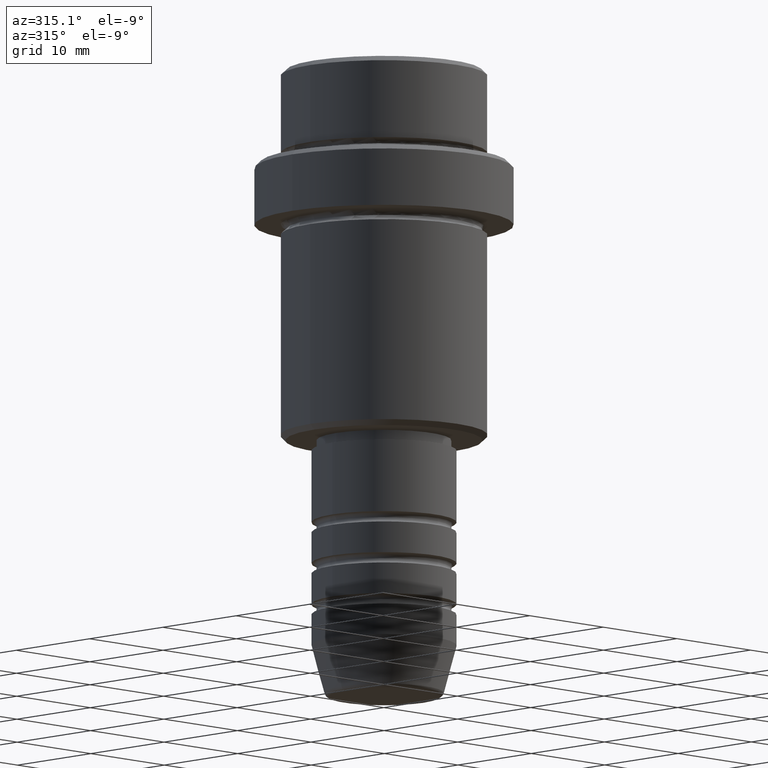
[diagram: clean part render]
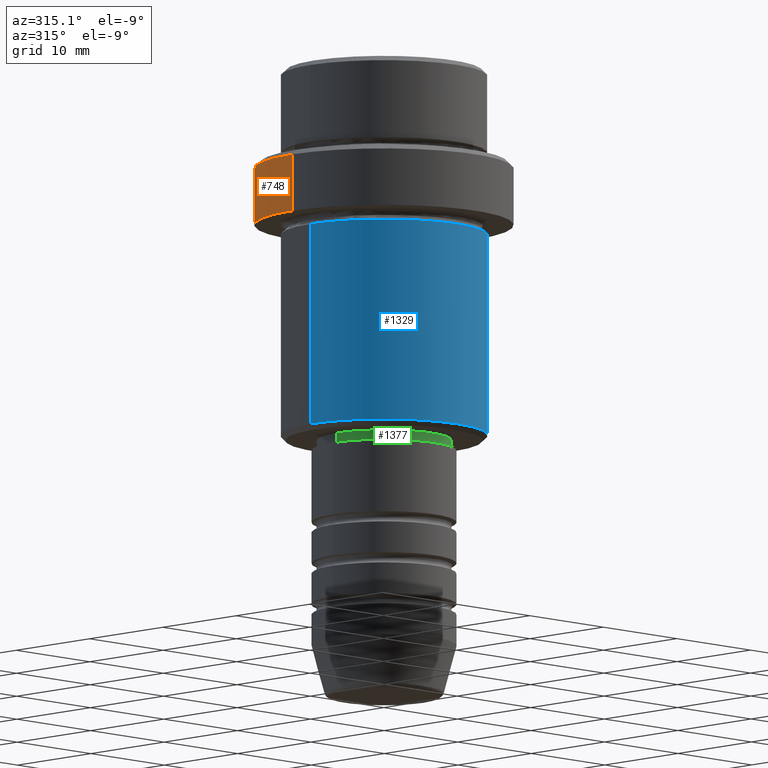
[diagram: same view with three faces highlighted in distinct colors, each labeled with its STEP entity id]
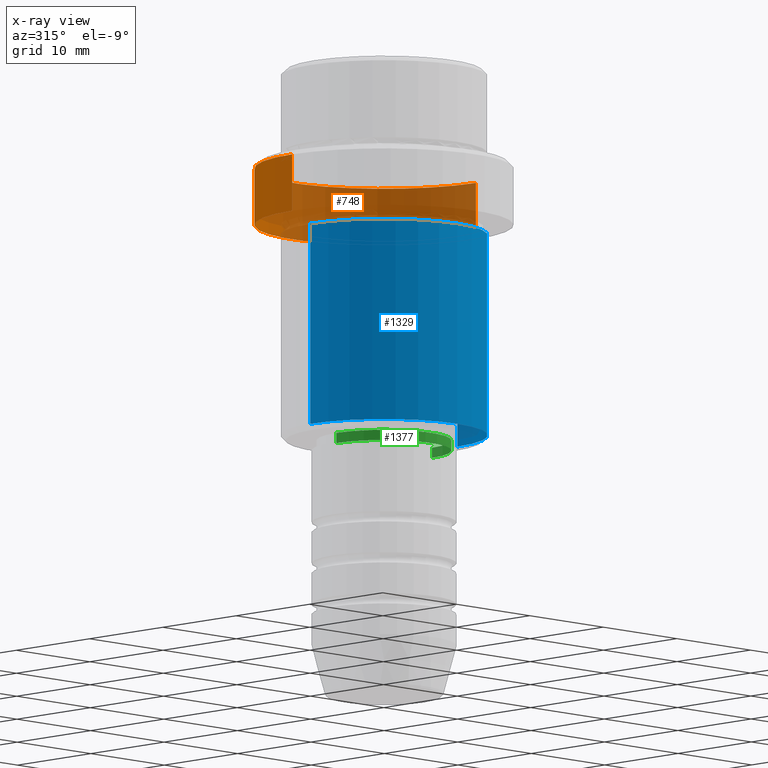
[diagram: x-ray of the same camera — body ghosted, the three highlighted faces saturated]
A machine part, auxiliary view with three faces highlighted in distinct colors.
The next image is the same camera in x-ray (body ghosted, the three faces saturated) — at least one of them is partly hidden behind the body in this view.
Their STEP definitions:

[orange] entity #748 — the highlighted cylindrical surface (partial cylindrical patch) has radius 12.5 mm, axis along (-0, -0, 1).
#80 = VECTOR ( 'NONE', #484, 1000.000000000000000 ) ;
#93 = VERTEX_POINT ( 'NONE', #479 ) ;
#136 = LINE ( 'NONE', #459, #1316 ) ;
#281 = CARTESIAN_POINT ( 'NONE',  ( 0.000000000000000000, 0.000000000000000000, 0.000000000000000000 ) ) ;
#343 = DIRECTION ( 'NONE',  ( 0.000000000000000000, 0.000000000000000000, -1.000000000000000000 ) ) ;
#459 = CARTESIAN_POINT ( 'NONE',  ( 12.50000000000000000, 0.000000000000000000, 0.000000000000000000 ) ) ;
#479 = CARTESIAN_POINT ( 'NONE',  ( -12.50000000000000000, 1.530808498934191521E-15, -9.500000000000007105 ) ) ;
#482 = CYLINDRICAL_SURFACE ( 'NONE', #875, 12.50000000000000000 ) ;
#484 = DIRECTION ( 'NONE',  ( -0.000000000000000000, -0.000000000000000000, 1.000000000000000000 ) ) ;
#497 = CARTESIAN_POINT ( 'NONE',  ( 12.50000000000000000, 0.000000000000000000, -9.500000000000007105 ) ) ;
#566 = CIRCLE ( 'NONE', #754, 12.50000000000000000 ) ;
#596 = DIRECTION ( 'NONE',  ( -0.000000000000000000, -0.000000000000000000, 1.000000000000000000 ) ) ;
#614 = CIRCLE ( 'NONE', #1000, 12.50000000000000000 ) ;
#683 = EDGE_LOOP ( 'NONE', ( #1034, #1245, #910, #1191 ) ) ;
#691 = EDGE_CURVE ( 'NONE', #1122, #742, #136, .T. ) ;
#742 = VERTEX_POINT ( 'NONE', #497 ) ;
#748 = ADVANCED_FACE ( 'NONE', ( #916 ), #482, .T. ) ;
#754 = AXIS2_PLACEMENT_3D ( 'NONE', #1339, #343, #784 ) ;
#784 = DIRECTION ( 'NONE',  ( 1.000000000000000000, 0.000000000000000000, 0.000000000000000000 ) ) ;
#839 = EDGE_CURVE ( 'NONE', #1122, #951, #614, .T. ) ;
#875 = AXIS2_PLACEMENT_3D ( 'NONE', #281, #1396, #1037 ) ;
#910 = ORIENTED_EDGE ( 'NONE', *, *, #1121, .T. ) ;
#916 = FACE_OUTER_BOUND ( 'NONE', #683, .T. ) ;
#927 = DIRECTION ( 'NONE',  ( 1.000000000000000000, 0.000000000000000000, 0.000000000000000000 ) ) ;
#932 = DIRECTION ( 'NONE',  ( -0.000000000000000000, -0.000000000000000000, 1.000000000000000000 ) ) ;
#951 = VERTEX_POINT ( 'NONE', #984 ) ;
#984 = CARTESIAN_POINT ( 'NONE',  ( -12.50000000000000000, 1.530808498934191521E-15, -15.00000000000000178 ) ) ;
#1000 = AXIS2_PLACEMENT_3D ( 'NONE', #1158, #596, #927 ) ;
#1034 = ORIENTED_EDGE ( 'NONE', *, *, #839, .T. ) ;
#1037 = DIRECTION ( 'NONE',  ( 1.000000000000000000, 0.000000000000000000, 0.000000000000000000 ) ) ;
#1121 = EDGE_CURVE ( 'NONE', #93, #742, #566, .T. ) ;
#1122 = VERTEX_POINT ( 'NONE', #1230 ) ;
#1125 = EDGE_CURVE ( 'NONE', #951, #93, #1250, .T. ) ;
#1156 = CARTESIAN_POINT ( 'NONE',  ( -12.50000000000000000, 1.530808498934191521E-15, 0.000000000000000000 ) ) ;
#1158 = CARTESIAN_POINT ( 'NONE',  ( 0.000000000000000000, 0.000000000000000000, -15.00000000000000178 ) ) ;
#1191 = ORIENTED_EDGE ( 'NONE', *, *, #691, .F. ) ;
#1230 = CARTESIAN_POINT ( 'NONE',  ( 12.50000000000000000, 0.000000000000000000, -15.00000000000000178 ) ) ;
#1245 = ORIENTED_EDGE ( 'NONE', *, *, #1125, .T. ) ;
#1250 = LINE ( 'NONE', #1156, #80 ) ;
#1316 = VECTOR ( 'NONE', #932, 1000.000000000000000 ) ;
#1339 = CARTESIAN_POINT ( 'NONE',  ( 0.000000000000000000, 0.000000000000000000, -9.500000000000007105 ) ) ;
#1396 = DIRECTION ( 'NONE',  ( -0.000000000000000000, -0.000000000000000000, 1.000000000000000000 ) ) ;

[blue] entity #1329 — the highlighted cylindrical surface (partial cylindrical patch) has radius 10 mm, axis along (-0, -0, 1).
#15 = ORIENTED_EDGE ( 'NONE', *, *, #552, .F. ) ;
#89 = VERTEX_POINT ( 'NONE', #912 ) ;
#97 = AXIS2_PLACEMENT_3D ( 'NONE', #519, #980, #1416 ) ;
#100 = VECTOR ( 'NONE', #279, 1000.000000000000000 ) ;
#199 = CARTESIAN_POINT ( 'NONE',  ( 0.000000000000000000, 0.000000000000000000, -16.00000000000000000 ) ) ;
#208 = CARTESIAN_POINT ( 'NONE',  ( -10.00000000000000000, 1.224646799147353256E-15, -35.50000000000001421 ) ) ;
#220 = ORIENTED_EDGE ( 'NONE', *, *, #405, .T. ) ;
#279 = DIRECTION ( 'NONE',  ( -0.000000000000000000, -0.000000000000000000, 1.000000000000000000 ) ) ;
#314 = ORIENTED_EDGE ( 'NONE', *, *, #1278, .T. ) ;
#378 = CARTESIAN_POINT ( 'NONE',  ( -10.00000000000000000, 1.224646799147353256E-15, -16.00000000000000000 ) ) ;
#388 = LINE ( 'NONE', #1082, #1176 ) ;
#395 = EDGE_CURVE ( 'NONE', #877, #504, #388, .T. ) ;
#405 = EDGE_CURVE ( 'NONE', #877, #834, #1039, .T. ) ;
#426 = DIRECTION ( 'NONE',  ( -0.000000000000000000, -0.000000000000000000, 1.000000000000000000 ) ) ;
#477 = CARTESIAN_POINT ( 'NONE',  ( 10.00000000000000000, 0.000000000000000000, -35.50000000000001421 ) ) ;
#485 = ORIENTED_EDGE ( 'NONE', *, *, #395, .F. ) ;
#504 = VERTEX_POINT ( 'NONE', #378 ) ;
#519 = CARTESIAN_POINT ( 'NONE',  ( 0.000000000000000000, 0.000000000000000000, -35.50000000000001421 ) ) ;
#552 = EDGE_CURVE ( 'NONE', #504, #89, #997, .T. ) ;
#613 = DIRECTION ( 'NONE',  ( -0.000000000000000000, -0.000000000000000000, 1.000000000000000000 ) ) ;
#642 = DIRECTION ( 'NONE',  ( 1.000000000000000000, 0.000000000000000000, 0.000000000000000000 ) ) ;
#647 = EDGE_LOOP ( 'NONE', ( #485, #220, #314, #15 ) ) ;
#679 = AXIS2_PLACEMENT_3D ( 'NONE', #1280, #613, #642 ) ;
#744 = CYLINDRICAL_SURFACE ( 'NONE', #679, 10.00000000000000000 ) ;
#824 = CARTESIAN_POINT ( 'NONE',  ( 10.00000000000000000, 0.000000000000000000, 0.000000000000000000 ) ) ;
#834 = VERTEX_POINT ( 'NONE', #477 ) ;
#855 = DIRECTION ( 'NONE',  ( -0.000000000000000000, -0.000000000000000000, 1.000000000000000000 ) ) ;
#877 = VERTEX_POINT ( 'NONE', #208 ) ;
#912 = CARTESIAN_POINT ( 'NONE',  ( 10.00000000000000000, 0.000000000000000000, -16.00000000000000000 ) ) ;
#947 = DIRECTION ( 'NONE',  ( 1.000000000000000000, 0.000000000000000000, 0.000000000000000000 ) ) ;
#980 = DIRECTION ( 'NONE',  ( -0.000000000000000000, -0.000000000000000000, 1.000000000000000000 ) ) ;
#997 = CIRCLE ( 'NONE', #1360, 10.00000000000000000 ) ;
#1039 = CIRCLE ( 'NONE', #97, 10.00000000000000000 ) ;
#1082 = CARTESIAN_POINT ( 'NONE',  ( -10.00000000000000000, 1.224646799147353256E-15, 0.000000000000000000 ) ) ;
#1176 = VECTOR ( 'NONE', #855, 1000.000000000000000 ) ;
#1278 = EDGE_CURVE ( 'NONE', #834, #89, #1383, .T. ) ;
#1280 = CARTESIAN_POINT ( 'NONE',  ( 0.000000000000000000, 0.000000000000000000, 0.000000000000000000 ) ) ;
#1329 = ADVANCED_FACE ( 'NONE', ( #1403 ), #744, .T. ) ;
#1360 = AXIS2_PLACEMENT_3D ( 'NONE', #199, #426, #947 ) ;
#1383 = LINE ( 'NONE', #824, #100 ) ;
#1403 = FACE_OUTER_BOUND ( 'NONE', #647, .T. ) ;
#1416 = DIRECTION ( 'NONE',  ( -1.000000000000000000, 0.000000000000000000, 0.000000000000000000 ) ) ;

[green] entity #1377 — the highlighted cylindrical surface (partial cylindrical patch) has radius 6.5 mm, axis along (-0, -0, 1).
#81 = VECTOR ( 'NONE', #687, 1000.000000000000000 ) ;
#101 = FACE_OUTER_BOUND ( 'NONE', #1043, .T. ) ;
#169 = DIRECTION ( 'NONE',  ( 1.000000000000000000, 0.000000000000000000, 0.000000000000000000 ) ) ;
#213 = AXIS2_PLACEMENT_3D ( 'NONE', #616, #1414, #407 ) ;
#285 = VERTEX_POINT ( 'NONE', #718 ) ;
#353 = VERTEX_POINT ( 'NONE', #1343 ) ;
#399 = ORIENTED_EDGE ( 'NONE', *, *, #1222, .F. ) ;
#403 = CARTESIAN_POINT ( 'NONE',  ( -6.499999999999994671, 7.960204194457788574E-16, -37.00000000000001421 ) ) ;
#407 = DIRECTION ( 'NONE',  ( 1.000000000000000000, 0.000000000000000000, 0.000000000000000000 ) ) ;
#574 = DIRECTION ( 'NONE',  ( -0.000000000000000000, -0.000000000000000000, 1.000000000000000000 ) ) ;
#616 = CARTESIAN_POINT ( 'NONE',  ( 0.000000000000000000, 0.000000000000000000, -36.00000000000001421 ) ) ;
#659 = CIRCLE ( 'NONE', #1068, 6.499999999999994671 ) ;
#687 = DIRECTION ( 'NONE',  ( -0.000000000000000000, -0.000000000000000000, 1.000000000000000000 ) ) ;
#708 = ORIENTED_EDGE ( 'NONE', *, *, #1225, .T. ) ;
#718 = CARTESIAN_POINT ( 'NONE',  ( 6.499999999999994671, 0.000000000000000000, -37.00000000000001421 ) ) ;
#719 = EDGE_CURVE ( 'NONE', #285, #842, #1362, .T. ) ;
#731 = DIRECTION ( 'NONE',  ( 1.000000000000000000, 0.000000000000000000, 0.000000000000000000 ) ) ;
#786 = ORIENTED_EDGE ( 'NONE', *, *, #719, .T. ) ;
#835 = DIRECTION ( 'NONE',  ( -0.000000000000000000, -0.000000000000000000, 1.000000000000000000 ) ) ;
#842 = VERTEX_POINT ( 'NONE', #1150 ) ;
#863 = EDGE_CURVE ( 'NONE', #353, #842, #1109, .T. ) ;
#929 = CARTESIAN_POINT ( 'NONE',  ( 0.000000000000000000, 0.000000000000000000, -37.00000000000001421 ) ) ;
#946 = LINE ( 'NONE', #1376, #81 ) ;
#957 = CYLINDRICAL_SURFACE ( 'NONE', #1270, 6.499999999999994671 ) ;
#983 = ORIENTED_EDGE ( 'NONE', *, *, #863, .F. ) ;
#1043 = EDGE_LOOP ( 'NONE', ( #399, #708, #786, #983 ) ) ;
#1060 = CARTESIAN_POINT ( 'NONE',  ( 6.499999999999994671, 0.000000000000000000, 0.000000000000000000 ) ) ;
#1068 = AXIS2_PLACEMENT_3D ( 'NONE', #929, #574, #169 ) ;
#1109 = CIRCLE ( 'NONE', #213, 6.499999999999994671 ) ;
#1150 = CARTESIAN_POINT ( 'NONE',  ( 6.499999999999994671, 0.000000000000000000, -36.00000000000001421 ) ) ;
#1185 = CARTESIAN_POINT ( 'NONE',  ( 0.000000000000000000, 0.000000000000000000, 0.000000000000000000 ) ) ;
#1221 = VECTOR ( 'NONE', #835, 1000.000000000000000 ) ;
#1222 = EDGE_CURVE ( 'NONE', #1313, #353, #946, .T. ) ;
#1225 = EDGE_CURVE ( 'NONE', #1313, #285, #659, .T. ) ;
#1270 = AXIS2_PLACEMENT_3D ( 'NONE', #1185, #1286, #731 ) ;
#1286 = DIRECTION ( 'NONE',  ( -0.000000000000000000, -0.000000000000000000, 1.000000000000000000 ) ) ;
#1313 = VERTEX_POINT ( 'NONE', #403 ) ;
#1343 = CARTESIAN_POINT ( 'NONE',  ( -6.499999999999994671, 7.960204194457788574E-16, -36.00000000000001421 ) ) ;
#1362 = LINE ( 'NONE', #1060, #1221 ) ;
#1376 = CARTESIAN_POINT ( 'NONE',  ( -6.499999999999994671, 7.960204194457788574E-16, 0.000000000000000000 ) ) ;
#1377 = ADVANCED_FACE ( 'NONE', ( #101 ), #957, .T. ) ;
#1414 = DIRECTION ( 'NONE',  ( -0.000000000000000000, -0.000000000000000000, 1.000000000000000000 ) ) ;